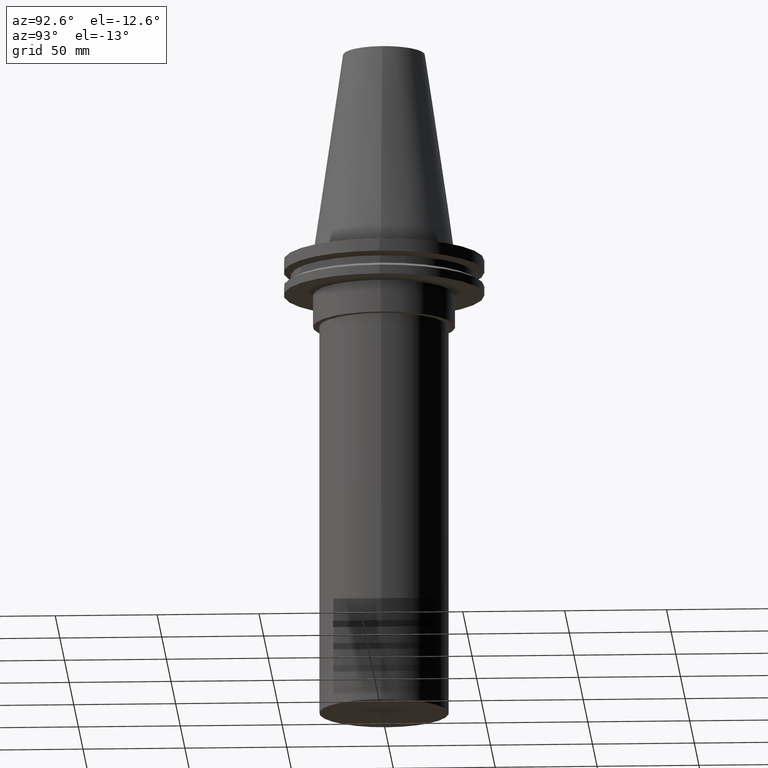
[diagram: clean part render]
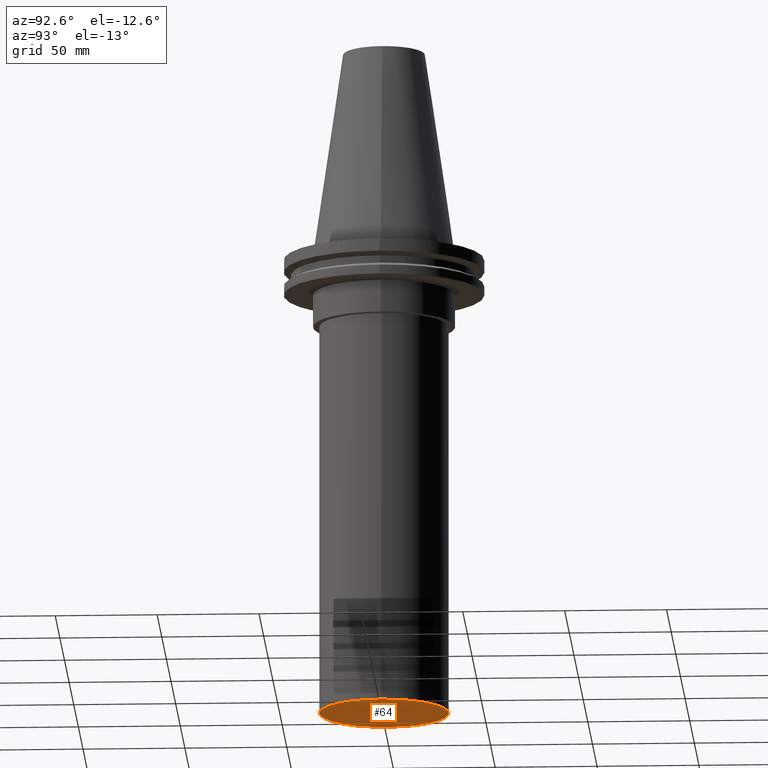
[diagram: same view with one face highlighted and labeled with its STEP entity id]
A machine part, auxiliary view. The second image highlights one B-rep face of the part: STEP entity #64.
In plain terms, the highlighted planar face has unit normal (0, -0, 1).
Its self-contained STEP definition (entity closure, byte-faithful):
#63 = CARTESIAN_POINT ( 'NONE',  ( 0.000000000000000000, 0.000000000000000000, -229.0000000000000000 ) ) ;
#64 = ADVANCED_FACE ( 'NONE', ( #391 ), #106, .F. ) ;
#93 = CARTESIAN_POINT ( 'NONE',  ( 0.000000000000000000, 31.75000000000000000, -229.0000000000000000 ) ) ;
#106 = PLANE ( 'NONE',  #112 ) ;
#112 = AXIS2_PLACEMENT_3D ( 'NONE', #93, #207, #130 ) ;
#124 = DIRECTION ( 'NONE',  ( 1.000000000000000000, 0.000000000000000000, 0.000000000000000000 ) ) ;
#130 = DIRECTION ( 'NONE',  ( 1.000000000000000000, 0.000000000000000000, 0.000000000000000000 ) ) ;
#147 = AXIS2_PLACEMENT_3D ( 'NONE', #63, #303, #124 ) ;
#148 = EDGE_LOOP ( 'NONE', ( #379 ) ) ;
#158 = EDGE_CURVE ( 'NONE', #188, #188, #215, .T. ) ;
#188 = VERTEX_POINT ( 'NONE', #342 ) ;
#207 = DIRECTION ( 'NONE',  ( 0.000000000000000000, -0.000000000000000000, 1.000000000000000000 ) ) ;
#215 = CIRCLE ( 'NONE', #147, 31.75000000000000000 ) ;
#303 = DIRECTION ( 'NONE',  ( -0.000000000000000000, -0.000000000000000000, 1.000000000000000000 ) ) ;
#342 = CARTESIAN_POINT ( 'NONE',  ( 31.75000000000000000, 0.000000000000000000, -229.0000000000000000 ) ) ;
#379 = ORIENTED_EDGE ( 'NONE', *, *, #158, .F. ) ;
#391 = FACE_OUTER_BOUND ( 'NONE', #148, .T. ) ;